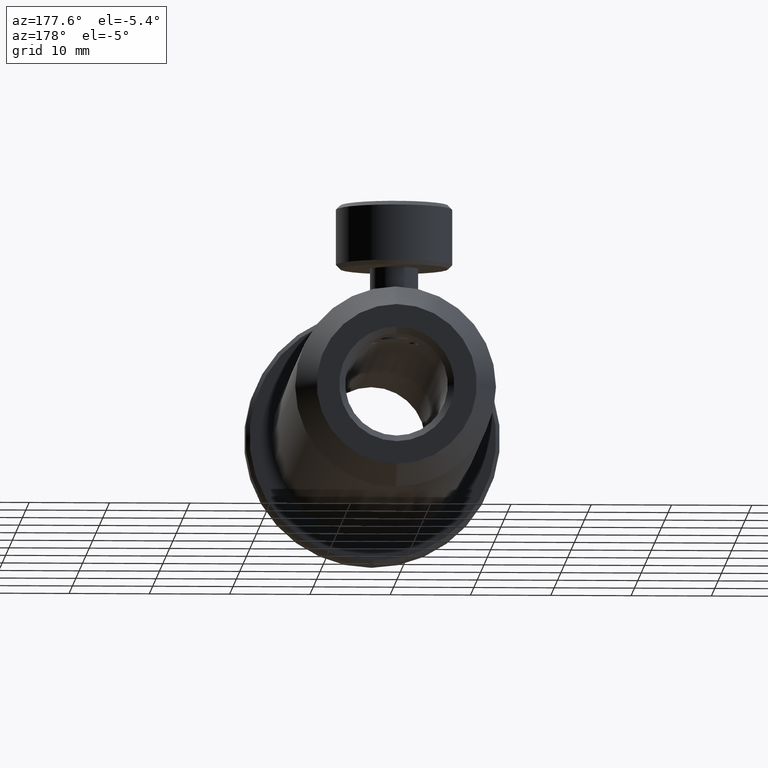
[diagram: clean part render]
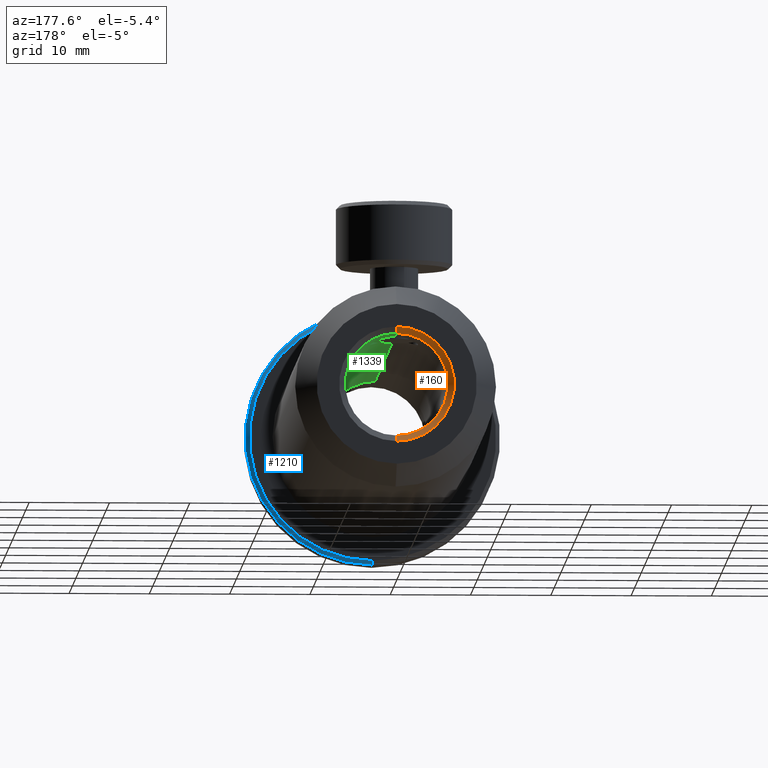
[diagram: same view with three faces highlighted in distinct colors, each labeled with its STEP entity id]
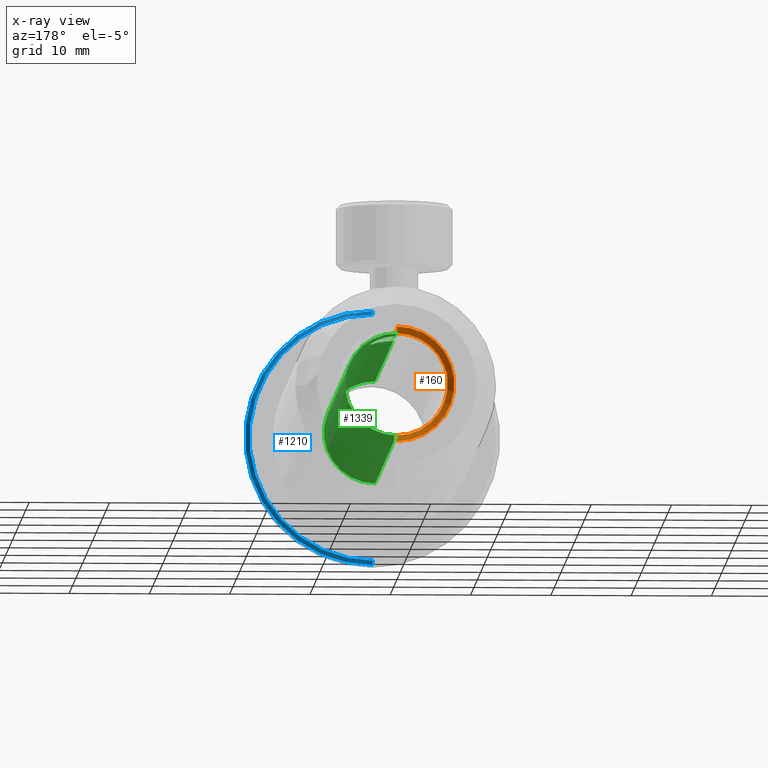
[diagram: x-ray of the same camera — body ghosted, the three highlighted faces saturated]
A machine part, auxiliary view with three faces highlighted in distinct colors.
The next image is the same camera in x-ray (body ghosted, the three faces saturated) — at least one of them is partly hidden behind the body in this view.
Their STEP definitions:

[orange] entity #160 — the highlighted conical surface has half-angle 45 deg.
#41 = CARTESIAN_POINT ( 'NONE',  ( -16.77690416192938400, 56.45116843547334900, 11.84600000000000000 ) ) ;
#56 = DIRECTION ( 'NONE',  ( 8.659560562354971100E-017, 0.7071067811865443500, -0.7071067811865506800 ) ) ;
#160 = ADVANCED_FACE ( 'NONE', ( #182 ), #1283, .F. ) ;
#182 = FACE_OUTER_BOUND ( 'NONE', #2683, .T. ) ;
#286 = LINE ( 'NONE', #536, #1749 ) ;
#390 = EDGE_CURVE ( 'NONE', #1806, #1236, #524, .T. ) ;
#411 = DIRECTION ( 'NONE',  ( -0.0000000000000000000, 1.000000000000000000, -0.0000000000000000000 ) ) ;
#489 = EDGE_CURVE ( 'NONE', #1806, #3137, #1891, .T. ) ;
#524 = LINE ( 'NONE', #1127, #2218 ) ;
#536 = CARTESIAN_POINT ( 'NONE',  ( -16.77690416192938400, 56.45116843547334900, 19.01132456065802900 ) ) ;
#567 = CARTESIAN_POINT ( 'NONE',  ( -16.77690416192938400, 55.67394387481526500, 18.23409999999994100 ) ) ;
#608 = DIRECTION ( 'NONE',  ( 0.0000000000000000000, 0.0000000000000000000, 1.000000000000000000 ) ) ;
#616 = AXIS2_PLACEMENT_3D ( 'NONE', #41, #1738, #608 ) ;
#781 = EDGE_CURVE ( 'NONE', #3137, #1900, #286, .T. ) ;
#839 = AXIS2_PLACEMENT_3D ( 'NONE', #1827, #411, #1795 ) ;
#1057 = DIRECTION ( 'NONE',  ( -0.0000000000000000000, 1.000000000000000000, -0.0000000000000000000 ) ) ;
#1127 = CARTESIAN_POINT ( 'NONE',  ( -16.77690416192938400, 56.45116843547334900, 4.680675439341971600 ) ) ;
#1236 = VERTEX_POINT ( 'NONE', #2304 ) ;
#1283 = CONICAL_SURFACE ( 'NONE', #3300, 7.165324560658029400, 0.7853981633974528300 ) ;
#1518 = ORIENTED_EDGE ( 'NONE', *, *, #489, .F. ) ;
#1519 = CIRCLE ( 'NONE', #616, 7.165324560658029400 ) ;
#1712 = CARTESIAN_POINT ( 'NONE',  ( -16.77690416192938400, 56.45116843547334900, 19.01132456065802900 ) ) ;
#1738 = DIRECTION ( 'NONE',  ( -0.0000000000000000000, 1.000000000000000000, -0.0000000000000000000 ) ) ;
#1749 = VECTOR ( 'NONE', #2193, 1000.000000000000000 ) ;
#1795 = DIRECTION ( 'NONE',  ( 0.0000000000000000000, 0.0000000000000000000, 1.000000000000000000 ) ) ;
#1806 = VERTEX_POINT ( 'NONE', #2544 ) ;
#1807 = EDGE_CURVE ( 'NONE', #1236, #1900, #1519, .T. ) ;
#1827 = CARTESIAN_POINT ( 'NONE',  ( -16.77690416192938400, 55.67394387481526500, 11.84600000000000000 ) ) ;
#1837 = ORIENTED_EDGE ( 'NONE', *, *, #1807, .T. ) ;
#1891 = CIRCLE ( 'NONE', #839, 6.388099999999940200 ) ;
#1900 = VERTEX_POINT ( 'NONE', #1712 ) ;
#2193 = DIRECTION ( 'NONE',  ( 0.0000000000000000000, 0.7071067811865443500, 0.7071067811865506800 ) ) ;
#2218 = VECTOR ( 'NONE', #56, 1000.000000000000000 ) ;
#2304 = CARTESIAN_POINT ( 'NONE',  ( -16.77690416192938400, 56.45116843547334900, 4.680675439341971600 ) ) ;
#2544 = CARTESIAN_POINT ( 'NONE',  ( -16.77690416192938400, 55.67394387481526500, 5.457900000000061700 ) ) ;
#2683 = EDGE_LOOP ( 'NONE', ( #1518, #3119, #1837, #3483 ) ) ;
#2727 = CARTESIAN_POINT ( 'NONE',  ( -16.77690416192938400, 56.45116843547334900, 11.84600000000000000 ) ) ;
#3013 = DIRECTION ( 'NONE',  ( 0.0000000000000000000, 0.0000000000000000000, 1.000000000000000000 ) ) ;
#3119 = ORIENTED_EDGE ( 'NONE', *, *, #390, .T. ) ;
#3137 = VERTEX_POINT ( 'NONE', #567 ) ;
#3300 = AXIS2_PLACEMENT_3D ( 'NONE', #2727, #1057, #3013 ) ;
#3483 = ORIENTED_EDGE ( 'NONE', *, *, #781, .F. ) ;

[blue] entity #1210 — the highlighted conical surface has half-angle 45 deg.
#129 = EDGE_CURVE ( 'NONE', #3037, #3416, #2395, .T. ) ;
#154 = ORIENTED_EDGE ( 'NONE', *, *, #129, .F. ) ;
#236 = VERTEX_POINT ( 'NONE', #2259 ) ;
#343 = CARTESIAN_POINT ( 'NONE',  ( -16.77690416192945100, -14.84883156452665200, -3.521036400955010600 ) ) ;
#362 = ORIENTED_EDGE ( 'NONE', *, *, #850, .T. ) ;
#426 = CARTESIAN_POINT ( 'NONE',  ( -16.77690416192945100, -15.35683156452665400, -4.029036400955003000 ) ) ;
#468 = CIRCLE ( 'NONE', #883, 15.36700000000000100 ) ;
#679 = CONICAL_SURFACE ( 'NONE', #2556, 15.87499999999999300, 0.7853981633974380600 ) ;
#768 = VERTEX_POINT ( 'NONE', #2975 ) ;
#850 = EDGE_CURVE ( 'NONE', #3037, #768, #468, .T. ) ;
#872 = VECTOR ( 'NONE', #3551, 1000.000000000000000 ) ;
#877 = EDGE_LOOP ( 'NONE', ( #362, #3285, #3219, #154 ) ) ;
#883 = AXIS2_PLACEMENT_3D ( 'NONE', #1369, #1116, #3298 ) ;
#914 = CARTESIAN_POINT ( 'NONE',  ( -16.77690416192945100, -15.35683156452665400, 11.84596359904499100 ) ) ;
#1010 = VECTOR ( 'NONE', #2652, 1000.000000000000000 ) ;
#1116 = DIRECTION ( 'NONE',  ( -0.0000000000000000000, -1.000000000000000000, -0.0000000000000000000 ) ) ;
#1210 = ADVANCED_FACE ( 'NONE', ( #3167 ), #679, .T. ) ;
#1294 = CARTESIAN_POINT ( 'NONE',  ( -16.77690416192944800, -15.35683156452665400, 27.72096359904498200 ) ) ;
#1298 = DIRECTION ( 'NONE',  ( -0.0000000000000000000, -1.000000000000000000, -0.0000000000000000000 ) ) ;
#1369 = CARTESIAN_POINT ( 'NONE',  ( -16.77690416192945100, -14.84883156452665200, 11.84596359904499100 ) ) ;
#1620 = DIRECTION ( 'NONE',  ( 0.0000000000000000000, 0.0000000000000000000, -1.000000000000000000 ) ) ;
#1845 = CIRCLE ( 'NONE', #3429, 15.87499999999999300 ) ;
#2046 = DIRECTION ( 'NONE',  ( -0.0000000000000000000, -1.000000000000000000, -0.0000000000000000000 ) ) ;
#2259 = CARTESIAN_POINT ( 'NONE',  ( -16.77690416192944800, -15.35683156452665400, 27.72096359904498200 ) ) ;
#2295 = DIRECTION ( 'NONE',  ( 0.0000000000000000000, 0.0000000000000000000, -1.000000000000000000 ) ) ;
#2395 = LINE ( 'NONE', #426, #1010 ) ;
#2556 = AXIS2_PLACEMENT_3D ( 'NONE', #914, #2046, #2295 ) ;
#2574 = CARTESIAN_POINT ( 'NONE',  ( -16.77690416192945100, -15.35683156452665400, -4.029036400955003000 ) ) ;
#2652 = DIRECTION ( 'NONE',  ( 0.0000000000000000000, -0.7071067811865547900, -0.7071067811865402500 ) ) ;
#2800 = LINE ( 'NONE', #1294, #872 ) ;
#2935 = CARTESIAN_POINT ( 'NONE',  ( -16.77690416192945100, -15.35683156452665400, 11.84596359904499100 ) ) ;
#2975 = CARTESIAN_POINT ( 'NONE',  ( -16.77690416192944800, -14.84883156452665200, 27.21296359904499000 ) ) ;
#2979 = EDGE_CURVE ( 'NONE', #768, #236, #2800, .T. ) ;
#3037 = VERTEX_POINT ( 'NONE', #343 ) ;
#3167 = FACE_OUTER_BOUND ( 'NONE', #877, .T. ) ;
#3219 = ORIENTED_EDGE ( 'NONE', *, *, #3558, .F. ) ;
#3285 = ORIENTED_EDGE ( 'NONE', *, *, #2979, .T. ) ;
#3298 = DIRECTION ( 'NONE',  ( 0.0000000000000000000, 0.0000000000000000000, -1.000000000000000000 ) ) ;
#3416 = VERTEX_POINT ( 'NONE', #2574 ) ;
#3429 = AXIS2_PLACEMENT_3D ( 'NONE', #2935, #1298, #1620 ) ;
#3551 = DIRECTION ( 'NONE',  ( 8.659560562354844100E-017, -0.7071067811865547900, 0.7071067811865402500 ) ) ;
#3558 = EDGE_CURVE ( 'NONE', #3416, #236, #1845, .T. ) ;

[green] entity #1339 — the highlighted cylindrical surface (partial cylindrical patch) has radius 6.3881 mm, axis along (-0, 1, -0).
#107 = CARTESIAN_POINT ( 'NONE',  ( -16.77690416192938400, 45.35116843547334000, 18.23409999999993800 ) ) ;
#121 = ORIENTED_EDGE ( 'NONE', *, *, #3222, .F. ) ;
#148 = CARTESIAN_POINT ( 'NONE',  ( -14.79249128663002100, 46.09284256271994500, 17.91981506621867500 ) ) ;
#198 = DIRECTION ( 'NONE',  ( 0.0000000000000000000, 0.0000000000000000000, 1.000000000000000000 ) ) ;
#224 = DIRECTION ( 'NONE',  ( -0.0000000000000000000, 1.000000000000000000, -0.0000000000000000000 ) ) ;
#245 = CARTESIAN_POINT ( 'NONE',  ( -16.77690416192938400, 51.35116843547334800, 18.23409999999993800 ) ) ;
#356 = CARTESIAN_POINT ( 'NONE',  ( -16.77690416192938400, -7.990831564526651200, 5.457900000000067900 ) ) ;
#359 = LINE ( 'NONE', #771, #824 ) ;
#388 = CARTESIAN_POINT ( 'NONE',  ( -13.79669607095239300, 47.95358988306359300, 17.49649993893894300 ) ) ;
#439 = VERTEX_POINT ( 'NONE', #1743 ) ;
#443 = CARTESIAN_POINT ( 'NONE',  ( -14.08355987215588800, 49.68680477617211700, 17.63915686635667900 ) ) ;
#455 = VERTEX_POINT ( 'NONE', #3404 ) ;
#458 = VECTOR ( 'NONE', #513, 1000.000000000000000 ) ;
#460 = ORIENTED_EDGE ( 'NONE', *, *, #1558, .T. ) ;
#513 = DIRECTION ( 'NONE',  ( -0.0000000000000000000, 1.000000000000000000, -0.0000000000000000000 ) ) ;
#545 = LINE ( 'NONE', #2172, #458 ) ;
#567 = CARTESIAN_POINT ( 'NONE',  ( -16.77690416192938400, 55.67394387481526500, 18.23409999999994100 ) ) ;
#665 = EDGE_LOOP ( 'NONE', ( #849, #2798, #1026, #949, #121, #998, #460 ) ) ;
#676 = CARTESIAN_POINT ( 'NONE',  ( -13.87546381502855800, 47.56290903385672700, 17.53734726921927800 ) ) ;
#711 = CARTESIAN_POINT ( 'NONE',  ( -13.93331585481732100, 49.32689044378627600, 17.56690687576074000 ) ) ;
#771 = CARTESIAN_POINT ( 'NONE',  ( -16.77690416192938400, 10.85402768764679000, 18.23409999999993800 ) ) ;
#824 = VECTOR ( 'NONE', #224, 1000.000000000000000 ) ;
#849 = ORIENTED_EDGE ( 'NONE', *, *, #2346, .F. ) ;
#932 = CARTESIAN_POINT ( 'NONE',  ( -15.43662935712983000, 45.66001712636811000, 18.09463743866043500 ) ) ;
#943 = CARTESIAN_POINT ( 'NONE',  ( -16.57585441171403700, 45.35116843547334000, 18.23409999999993800 ) ) ;
#949 = ORIENTED_EDGE ( 'NONE', *, *, #2025, .F. ) ;
#952 = CARTESIAN_POINT ( 'NONE',  ( -14.51716194189519300, 46.36836857008194100, 17.82284607609012300 ) ) ;
#979 = EDGE_CURVE ( 'NONE', #2175, #3137, #3422, .T. ) ;
#998 = ORIENTED_EDGE ( 'NONE', *, *, #979, .T. ) ;
#1026 = ORIENTED_EDGE ( 'NONE', *, *, #3174, .T. ) ;
#1184 = EDGE_CURVE ( 'NONE', #3364, #3305, #3134, .T. ) ;
#1190 = DIRECTION ( 'NONE',  ( -0.0000000000000000000, 1.000000000000000000, -0.0000000000000000000 ) ) ;
#1257 = CARTESIAN_POINT ( 'NONE',  ( -15.26242470515579800, 45.75429186823025400, 18.05420645538885400 ) ) ;
#1267 = CARTESIAN_POINT ( 'NONE',  ( -13.77690416192938400, 48.35116843547334800, 17.48584233910835600 ) ) ;
#1319 = CARTESIAN_POINT ( 'NONE',  ( -14.94035652418734000, 50.73123364726544800, 17.96667874309961400 ) ) ;
#1325 = DIRECTION ( 'NONE',  ( -0.0000000000000000000, 1.000000000000000000, -0.0000000000000000000 ) ) ;
#1339 = ADVANCED_FACE ( 'NONE', ( #2702 ), #2141, .F. ) ;
#1424 = DIRECTION ( 'NONE',  ( 0.0000000000000000000, 0.0000000000000000000, 1.000000000000000000 ) ) ;
#1491 = B_SPLINE_CURVE_WITH_KNOTS ( 'NONE', 3,
 ( #245, #3480, #2135, #1847, #2398, #2958, #3248, #1319, #2941, #2113, #3525, #2970, #443, #711, #1584, #2689, #2378, #3502 ),
 .UNSPECIFIED., .F., .F.,
 ( 4, 2, 2, 2, 2, 2, 2, 2, 4 ),
 ( 0.009521638396082497300, 0.01011620900267711800, 0.01071077960927173700, 0.01130535021586635800, 0.01189992082246097900, 0.01249449142905560000, 0.01308906203565022100, 0.01368363264224484000, 0.01427820324883946100 ),
 .UNSPECIFIED. ) ;
#1546 = CARTESIAN_POINT ( 'NONE',  ( -14.08460738112179000, 47.01326391460833100, 17.63965173706704400 ) ) ;
#1558 = EDGE_CURVE ( 'NONE', #3137, #1806, #2073, .T. ) ;
#1584 = CARTESIAN_POINT ( 'NONE',  ( -13.87560815409188000, 49.13984158164338100, 17.53742055111736100 ) ) ;
#1743 = CARTESIAN_POINT ( 'NONE',  ( -13.77690416192938400, 48.35116843547334800, 17.48584233910835600 ) ) ;
#1773 = CARTESIAN_POINT ( 'NONE',  ( -16.77690416192938400, -7.990831564526651200, 18.23409999999993400 ) ) ;
#1806 = VERTEX_POINT ( 'NONE', #2544 ) ;
#1847 = CARTESIAN_POINT ( 'NONE',  ( -15.98783932998111900, 51.25232634947011000, 18.18818601956867200 ) ) ;
#1925 = AXIS2_PLACEMENT_3D ( 'NONE', #3145, #3426, #2913 ) ;
#2025 = EDGE_CURVE ( 'NONE', #439, #455, #2956, .T. ) ;
#2073 = CIRCLE ( 'NONE', #3182, 6.388099999999940200 ) ;
#2098 = CARTESIAN_POINT ( 'NONE',  ( -15.79920970146604400, 45.50815147054707700, 18.16153005963779400 ) ) ;
#2113 = CARTESIAN_POINT ( 'NONE',  ( -14.51549822837746500, 50.33196547254614500, 17.82219344186182400 ) ) ;
#2135 = CARTESIAN_POINT ( 'NONE',  ( -16.37665721078904100, 51.33095751006679600, 18.22453817061032000 ) ) ;
#2141 = CYLINDRICAL_SURFACE ( 'NONE', #2883, 6.388099999999936600 ) ;
#2172 = CARTESIAN_POINT ( 'NONE',  ( -16.77690416192938400, 10.85402768764679000, 5.457900000000064400 ) ) ;
#2175 = VERTEX_POINT ( 'NONE', #2974 ) ;
#2283 = VECTOR ( 'NONE', #3085, 1000.000000000000000 ) ;
#2346 = EDGE_CURVE ( 'NONE', #3305, #1806, #545, .T. ) ;
#2363 = CARTESIAN_POINT ( 'NONE',  ( -14.17846896892650400, 46.83935817284003600, 17.68292350719356100 ) ) ;
#2378 = CARTESIAN_POINT ( 'NONE',  ( -13.77690416192938500, 48.54933893801260300, 17.48584233910835900 ) ) ;
#2398 = CARTESIAN_POINT ( 'NONE',  ( -15.79957769875547600, 51.19439035731937100, 18.16161764226554700 ) ) ;
#2544 = CARTESIAN_POINT ( 'NONE',  ( -16.77690416192938400, 55.67394387481526500, 5.457900000000061700 ) ) ;
#2608 = CARTESIAN_POINT ( 'NONE',  ( -13.77690416192938500, 48.15318425288695900, 17.48584233910835900 ) ) ;
#2640 = CARTESIAN_POINT ( 'NONE',  ( -15.98659656299126300, 45.45039403990117700, 18.18801061149018100 ) ) ;
#2689 = CARTESIAN_POINT ( 'NONE',  ( -13.79690740768720000, 48.75009599943654600, 17.49661109610995200 ) ) ;
#2699 = CARTESIAN_POINT ( 'NONE',  ( -16.77690416192938400, 10.85402768764679000, 11.84600000000000000 ) ) ;
#2702 = FACE_OUTER_BOUND ( 'NONE', #665, .T. ) ;
#2798 = ORIENTED_EDGE ( 'NONE', *, *, #1184, .F. ) ;
#2827 = CARTESIAN_POINT ( 'NONE',  ( -16.77690416192938400, 10.85402768764679000, 18.23409999999993800 ) ) ;
#2883 = AXIS2_PLACEMENT_3D ( 'NONE', #2699, #1325, #198 ) ;
#2887 = CARTESIAN_POINT ( 'NONE',  ( -16.37406459660708100, 45.37177277870714700, 18.22435441017543300 ) ) ;
#2896 = CARTESIAN_POINT ( 'NONE',  ( -14.94147206257484200, 45.97028520878111400, 17.96700191360695300 ) ) ;
#2913 = DIRECTION ( 'NONE',  ( 0.0000000000000000000, 0.0000000000000000000, 1.000000000000000000 ) ) ;
#2941 = CARTESIAN_POINT ( 'NONE',  ( -14.78897675123273800, 50.60630885420146500, 17.91864270813432800 ) ) ;
#2956 = B_SPLINE_CURVE_WITH_KNOTS ( 'NONE', 3,
 ( #1267, #2608, #388, #676, #3196, #1546, #2363, #3175, #952, #148, #2896, #1257, #932, #2098, #2640, #2887, #943, #107 ),
 .UNSPECIFIED., .F., .F.,
 ( 4, 2, 2, 2, 2, 2, 2, 2, 4 ),
 ( 0.01427820324883946100, 0.01487221484001053300, 0.01546622643118160600, 0.01606023802235267600, 0.01665424961352374900, 0.01724826120469482100, 0.01784227279586589300, 0.01843628438703696200, 0.01903029597820802800 ),
 .UNSPECIFIED. ) ;
#2958 = CARTESIAN_POINT ( 'NONE',  ( -15.43494672582923000, 51.04156397371328100, 18.09430724745601500 ) ) ;
#2970 = CARTESIAN_POINT ( 'NONE',  ( -14.17743744223298200, 49.86124557911598000, 17.68246627835031100 ) ) ;
#2974 = CARTESIAN_POINT ( 'NONE',  ( -16.77690416192938400, 51.35116843547334800, 18.23409999999993800 ) ) ;
#3082 = CARTESIAN_POINT ( 'NONE',  ( -16.77690416192938400, 55.67394387481526500, 11.84600000000000000 ) ) ;
#3085 = DIRECTION ( 'NONE',  ( -0.0000000000000000000, 1.000000000000000000, -0.0000000000000000000 ) ) ;
#3134 = CIRCLE ( 'NONE', #1925, 6.388099999999933100 ) ;
#3137 = VERTEX_POINT ( 'NONE', #567 ) ;
#3145 = CARTESIAN_POINT ( 'NONE',  ( -16.77690416192938400, -7.990831564526651200, 11.84600000000000000 ) ) ;
#3174 = EDGE_CURVE ( 'NONE', #3364, #455, #359, .T. ) ;
#3175 = CARTESIAN_POINT ( 'NONE',  ( -14.39419468653968400, 46.51810234874122300, 17.77425750427163500 ) ) ;
#3182 = AXIS2_PLACEMENT_3D ( 'NONE', #3082, #1190, #1424 ) ;
#3196 = CARTESIAN_POINT ( 'NONE',  ( -13.93336008661052500, 47.37510104301677700, 17.56693694232736300 ) ) ;
#3222 = EDGE_CURVE ( 'NONE', #2175, #439, #1491, .T. ) ;
#3248 = CARTESIAN_POINT ( 'NONE',  ( -15.26211091746832000, 50.94790081764406200, 18.05414118142158500 ) ) ;
#3305 = VERTEX_POINT ( 'NONE', #356 ) ;
#3364 = VERTEX_POINT ( 'NONE', #1773 ) ;
#3404 = CARTESIAN_POINT ( 'NONE',  ( -16.77690416192938400, 45.35116843547334000, 18.23409999999993800 ) ) ;
#3422 = LINE ( 'NONE', #2827, #2283 ) ;
#3426 = DIRECTION ( 'NONE',  ( -0.0000000000000000000, 1.000000000000000000, -0.0000000000000000000 ) ) ;
#3480 = CARTESIAN_POINT ( 'NONE',  ( -16.57852684479410100, 51.35116843547334000, 18.23409999999993400 ) ) ;
#3502 = CARTESIAN_POINT ( 'NONE',  ( -13.77690416192938400, 48.35116843547334800, 17.48584233910835600 ) ) ;
#3525 = CARTESIAN_POINT ( 'NONE',  ( -14.39333996085731100, 50.18315694688077900, 17.77391595288742100 ) ) ;